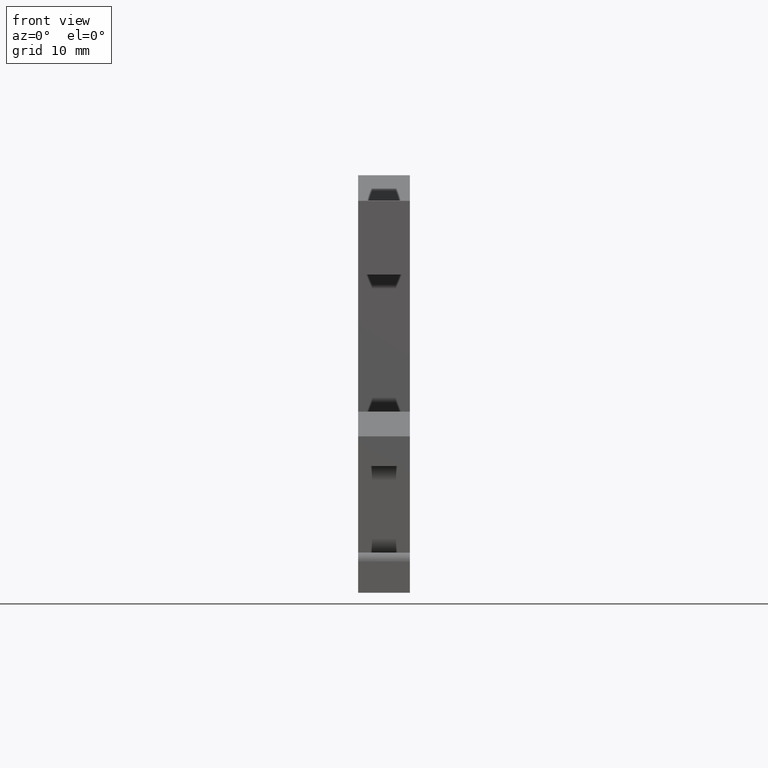
[diagram: clean part render]
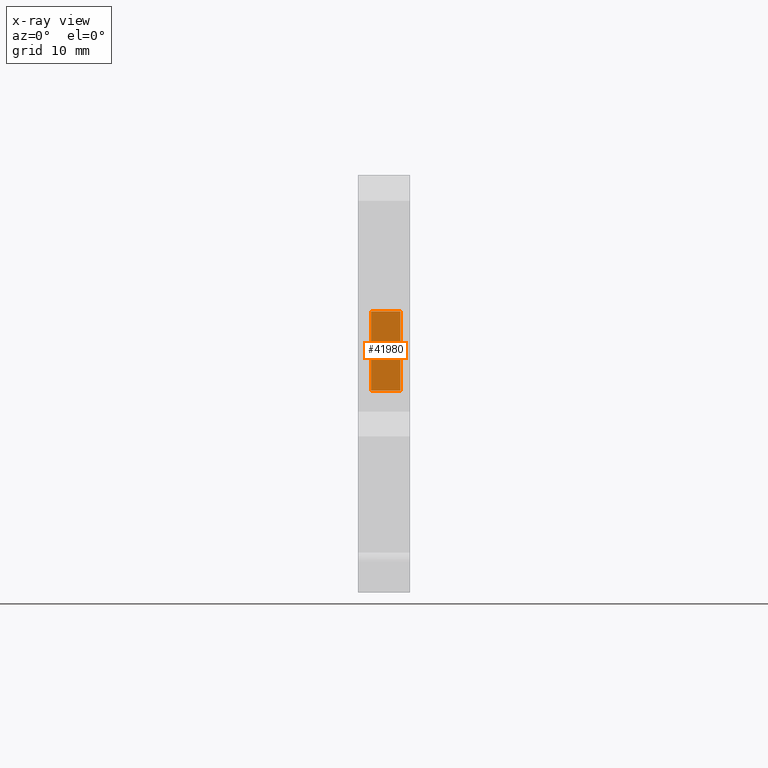
[diagram: x-ray — body ghosted, one internal face saturated and labeled with its STEP entity id]
A machine part, front view, then the same camera in x-ray: the body is ghosted and one INTERNAL B-rep face — a face not visible from any outside direction — is saturated and labeled: STEP entity #41980.
In plain terms, the highlighted planar face has unit normal (-0, -0.9397, 0.342).
Its self-contained STEP definition (entity closure, byte-faithful):
#41400=CARTESIAN_POINT('',(51.5921970230181,28.2856800637385,
-0.949999999998596));
#41410=VERTEX_POINT('',#41400);
#41440=CARTESIAN_POINT('',(45.0619332319312,-1.29184817558678E-11,
-0.949999999998243));
#41450=DIRECTION('',(0.224951054344262,0.974370064785144,
-1.21365774926204E-14));
#41460=VECTOR('',#41450,1.);
#41470=LINE('',#41440,#41460);
#41480=CARTESIAN_POINT('',(49.7138557192432,20.1496900227814,
-0.949999999998494));
#41490=VERTEX_POINT('',#41480);
#41500=EDGE_CURVE('',#41490,#41410,#41470,.T.);
#41680=CARTESIAN_POINT('',(51.592197023018,28.2856800637386,
1.3631419331001E-12));
#41690=DIRECTION('',(-0.974370064785144,0.224951054344262,
-4.99233271767412E-14));
#41700=DIRECTION('',(0.224951054344262,0.974370064785144,
-1.21365774926204E-14));
#41710=AXIS2_PLACEMENT_3D('',#41680,#41690,#41700);
#41720=PLANE('',#41710);
#41730=ORIENTED_EDGE('',*,*,#41500,.F.);
#41740=CARTESIAN_POINT('',(51.592197023018,28.2856800637386,
1.3631419331001E-12));
#41750=DIRECTION('',(4.59136596323955E-14,-2.30558228825359E-14,-1.));
#41760=VECTOR('',#41750,1.);
#41770=LINE('',#41740,#41760);
#41780=CARTESIAN_POINT('',(51.5921970230182,28.2856800637385,
-3.84999999999861));
#41790=VERTEX_POINT('',#41780);
#41800=EDGE_CURVE('',#41410,#41790,#41770,.T.);
#41810=ORIENTED_EDGE('',*,*,#41800,.F.);
#41820=CARTESIAN_POINT('',(45.0619332319313,-1.29853436422272E-11,
-3.84999999999826));
#41830=DIRECTION('',(-0.224951054344262,-0.974370064785144,
1.21365774926204E-14));
#41840=VECTOR('',#41830,1.);
#41850=LINE('',#41820,#41840);
#41860=CARTESIAN_POINT('',(49.7138557192433,20.1496900227813,
-3.84999999999851));
#41870=VERTEX_POINT('',#41860);
#41880=EDGE_CURVE('',#41790,#41870,#41850,.T.);
#41890=ORIENTED_EDGE('',*,*,#41880,.F.);
#41900=CARTESIAN_POINT('',(49.7138557192431,20.1496900227814,
1.4937922430136E-12));
#41910=DIRECTION('',(-4.59136596323955E-14,2.30558228825359E-14,1.));
#41920=VECTOR('',#41910,1.);
#41930=LINE('',#41900,#41920);
#41940=EDGE_CURVE('',#41870,#41490,#41930,.T.);
#41950=ORIENTED_EDGE('',*,*,#41940,.F.);
#41960=EDGE_LOOP('',(#41950,#41890,#41810,#41730));
#41970=FACE_OUTER_BOUND('',#41960,.T.);
#41980=ADVANCED_FACE('',(#41970),#41720,.F.);